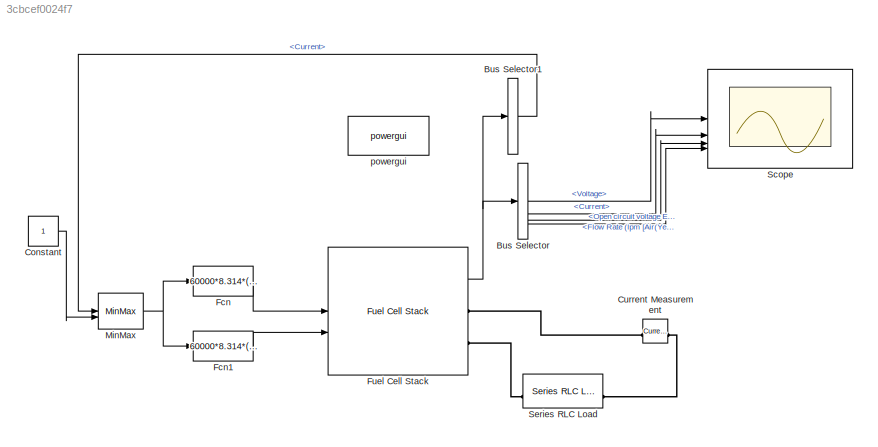
MODEL slx_3cbcef0024f7
KIND model
CONFIG AbsTol = auto
CONFIG EnableMultiTasking = off
CONFIG FixedStep = auto
CONFIG MaxStep = auto
CONFIG MinStep = auto
CONFIG RelTol = 1e-3
CONFIG SampleTimeConstraint = Unconstrained
CONFIG SolverName = VariableStepAuto
CONFIG StartTime = 0.0
CONFIG StopTime = 1
BLOCK [BusSelector] Bus Selector
  OutputSignals = Voltage,Current,Flow Rate (lpm [Air(Yellow); Fuel(Magenta)],Open circuit voltage Eoc (V)
BLOCK [BusSelector] Bus Selector1
  OutputSignals = Current
BLOCK [Constant] Constant
BLOCK [Reference] Current Measurement  REF=spsCurrentMeasurementLib/Current Measurement
  LibrarySourceBlock = sps_lib/Sensors and Measurements/Current Measurement
  SourceBlock = spsCurrentMeasurementLib/Current Measurement
  SourceType = Current Measurement
  UserDataPersistent = on
BLOCK [Fcn] Fcn
  Expr = 60000*8.314*(273+50)*400*u(1)/2*96500*(3*101325)*0.91*0.995
BLOCK [Fcn] Fcn1
  Expr = 60000*8.314*(273+50)*400*u(1)/(4*96500*(3*101325)*0.51*0.21)
BLOCK [Reference] Fuel Cell Stack  REF=spsFuelCellStackLib/Fuel Cell Stack
  LibrarySourceBlock = sps_lib/Sources/Fuel Cell Stack
  SourceBlock = spsFuelCellStackLib/Fuel Cell Stack
  SourceType = Fuel Cell Stack
BLOCK [MinMax] MinMax
  Function = max
  Inputs = 2
BLOCK [Scope] Scope
  Floating = off
  NumInputPorts = 4
  ScopeSpecificationString = Simulink.scopes.TimeScopeBlockCfg('CurrentConfiguration', extmgr.ConfigurationSet(extmgr.Configuration('Core','General UI',true),extmgr.Configuration('Core','Source UI',true),extmgr.Configuration('Sources','WiredSimulink',true),extmgr.Configuration('Visuals','Time Domain',true,'SerializedDisplays',{struct('MinYLimReal','762.28382','MaxYLimReal','924.05501','YLabelReal','','MinYLimMag','762.28382',...<+3534ch>
BLOCK [Reference] Series RLC Load  REF=spsSeriesRLCLoadLib/Series RLC Load
  AttributesFormatString = \n
  LibrarySourceBlock = sps_lib/Passives/Series RLC Load
  SourceBlock = spsSeriesRLCLoadLib/Series RLC Load
  SourceType = Series RLC Load
BLOCK [Reference] powergui  REF=sps_lib/powergui
  Priority = 1
  SourceBlock = sps_lib/powergui
  SourceType = PSB option menu block
LINE Bus Selector1:1 -> MinMax:1
LINE Bus Selector:1 -> Scope:1
LINE Bus Selector:2 -> Scope:2
LINE Bus Selector:3 -> Scope:3
LINE Bus Selector:4 -> Scope:4
LINE Constant:1 -> MinMax:2
LINE Fcn1:1 -> Fuel Cell Stack:2
LINE Fcn:1 -> Fuel Cell Stack:1
NET Fuel Cell Stack:1 -> Bus Selector1:1, Bus Selector:1
NET MinMax:1 -> Fcn1:1, Fcn:1
PLINE Current Measurement:LConn1 -- Fuel Cell Stack:RConn1
PLINE Current Measurement:RConn1 -- Series RLC Load:RConn1
PLINE Fuel Cell Stack:RConn2 -- Series RLC Load:LConn1
note: NET lines group one-source signal fan-out (src -> all destinations, sorted); 1:1 wires keep LINE
